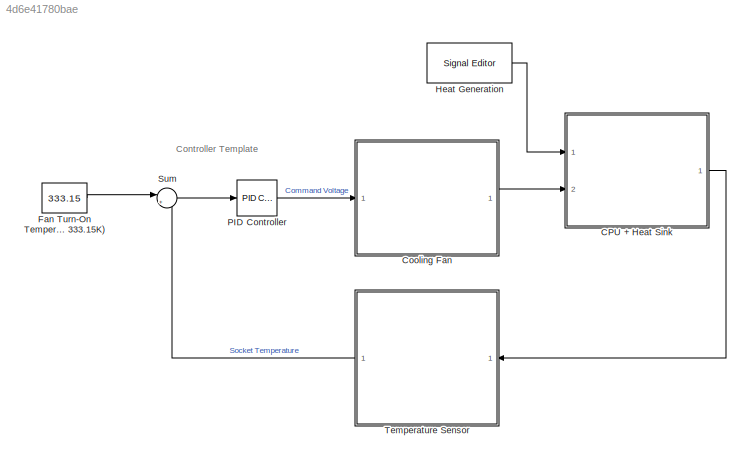
MODEL slx_4d6e41780bae
KIND model
CONFIG AbsTol = auto
CONFIG EnableMultiTasking = off
CONFIG FixedStep = 0.1
CONFIG MaxStep = auto
CONFIG MinStep = auto
CONFIG RelTol = 1e-3
CONFIG SampleTimeConstraint = Unconstrained
CONFIG SolverName = VariableStepAuto
CONFIG StartFcn = fprintf(['Begin @ ' datestr(now,'HH:MM:SS\n')])
CONFIG StartTime = 0.0
CONFIG StopFcn = fprintf(['Stop @ ' datestr(now,'HH:MM:SS\n')])
CONFIG StopTime = 100
BLOCK [SubSystem] CPU + Heat Sink
  Ports = [2, 1]
  ReferencedSubsystem = heat_sink
  fidelityPARAM = Reduced Order Model
  romPARAM = ROM.mat
BLOCK [SubSystem] Cooling Fan
  Ports = [1, 1]
  ReferencedSubsystem = fan
BLOCK [Constant] Fan Turn-On Temperature (60.0C = 333.15K)
  Value = 333.15
BLOCK [Reference] Heat Generation  REF=SignalEditorBlockLib/Signal Editor
  Ports = [0, 1]
  SourceBlock = SignalEditorBlockLib/Signal Editor
  SourceType = SignalEditor
  UserDataPersistent = on
BLOCK [Reference] PID Controller  REF=pid_lib/PID Controller
  Ports = [1, 1]
  SourceBlock = pid_lib/PID Controller
  SourceType = PID 1dof
BLOCK [Sum] Sum
  Inputs = |+-
  Ports = [2, 1]
BLOCK [SubSystem] Temperature Sensor
  Ports = [1, 1]
  ReferencedSubsystem = sensor
ANNOTATION (root): Controller Template
LINE CPU + Heat Sink:1 -> Temperature Sensor:1
LINE Cooling Fan:1 -> CPU + Heat Sink:2
LINE Fan Turn-On Temperature (60.0C = 333.15K):1 -> Sum:1
LINE Heat Generation:1 -> CPU + Heat Sink:1
LINE PID Controller:1 -> Cooling Fan:1
LINE Sum:1 -> PID Controller:1
LINE Temperature Sensor:1 -> Sum:2
